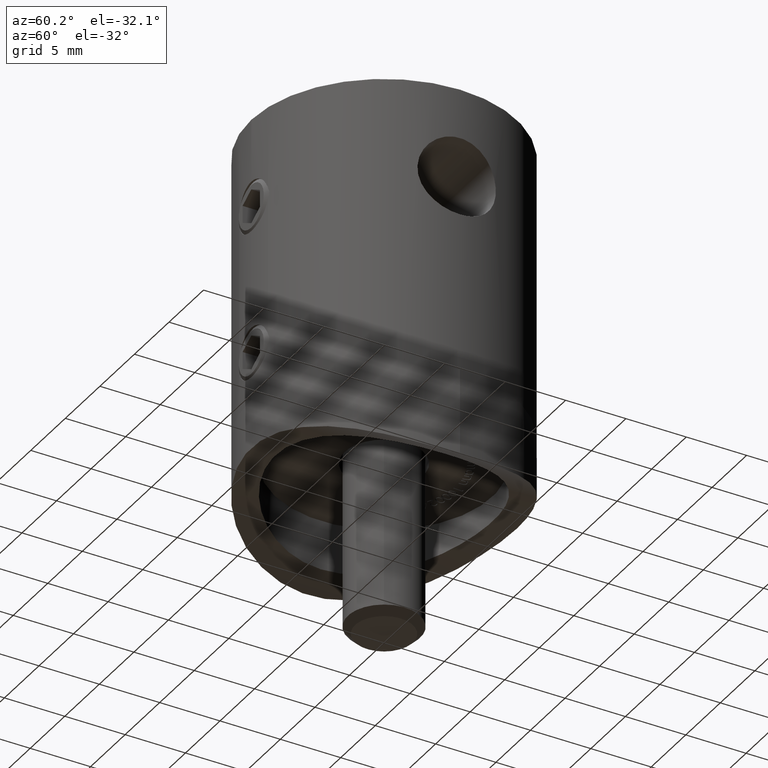
[diagram: clean part render]
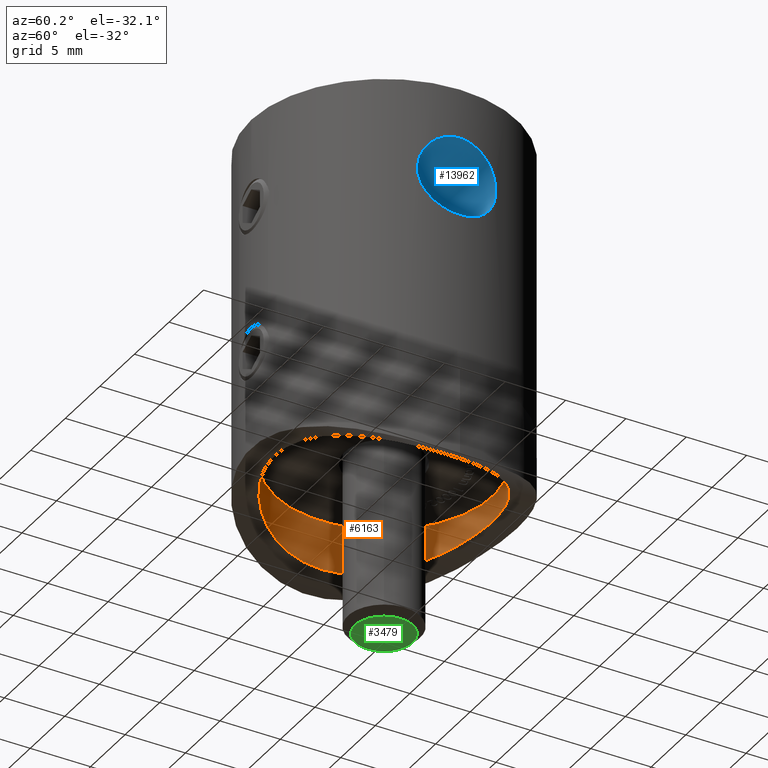
[diagram: same view with three faces highlighted in distinct colors, each labeled with its STEP entity id]
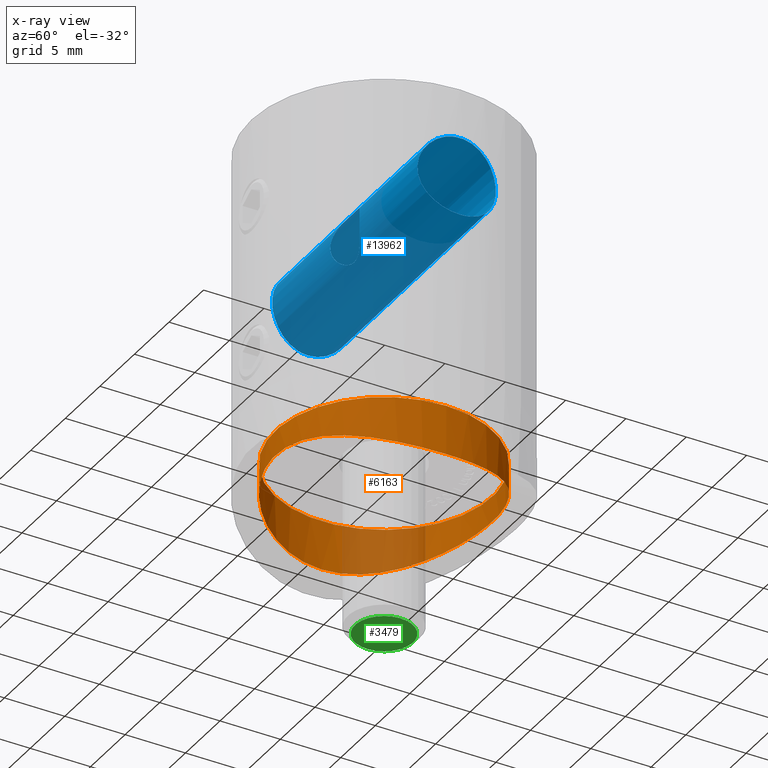
[diagram: x-ray of the same camera — body ghosted, the three highlighted faces saturated]
A machine part, auxiliary view with three faces highlighted in distinct colors.
The next image is the same camera in x-ray (body ghosted, the three faces saturated) — at least one of them is partly hidden behind the body in this view.
Their STEP definitions:

[orange] entity #6163 — the highlighted cylindrical surface (bore or boss wall) has radius 9 mm, axis along (0, 0, 1).
#370 = CARTESIAN_POINT ( 'NONE',  ( 7.801320390038442909, -4.525699097909322788, -13.08450583098699127 ) ) ;
#417 = CARTESIAN_POINT ( 'NONE',  ( 5.497450429022887164, -7.131813691955859902, -12.32385574944524365 ) ) ;
#478 = CARTESIAN_POINT ( 'NONE',  ( 4.015580886328728560, -8.075779872960263006, -11.97657272424988406 ) ) ;
#535 = EDGE_CURVE ( 'NONE', #3088, #3088, #7332, .T. ) ;
#542 = CARTESIAN_POINT ( 'NONE',  ( -2.369100941744517019, 8.702862009132205756, -11.72469854016720525 ) ) ;
#591 = CARTESIAN_POINT ( 'NONE',  ( -8.986205239822114166, 0.5808486025061203595, -13.59872009298760887 ) ) ;
#643 = CARTESIAN_POINT ( 'NONE',  ( -4.783214464045448366, 7.629261748838104928, -12.14515352927832836 ) ) ;
#710 = CARTESIAN_POINT ( 'NONE',  ( 5.950024793402116430, 6.777821217551544208, -12.44748217056694628 ) ) ;
#771 = CARTESIAN_POINT ( 'NONE',  ( 9.000000000000001776, 8.131516293641283255E-17, -13.60520903995044506 ) ) ;
#1745 = CARTESIAN_POINT ( 'NONE',  ( 7.136393349933625174, -5.491527681049624299, -12.83627516481763031 ) ) ;
#1809 = CARTESIAN_POINT ( 'NONE',  ( 2.928297529281813638, -8.515469180634774204, -11.80126484293778155 ) ) ;
#1862 = CARTESIAN_POINT ( 'NONE',  ( -0.5875516269330836039, -8.985797788739249725, -11.60604218590823677 ) ) ;
#1908 = CARTESIAN_POINT ( 'NONE',  ( -1.496328371181385286, 8.879702304195816964, -11.65085713014948254 ) ) ;
#1970 = CARTESIAN_POINT ( 'NONE',  ( -7.143967367260361634, -5.505046255798359489, -12.83690566015627432 ) ) ;
#2041 = CARTESIAN_POINT ( 'NONE',  ( -7.316073530914037448, 5.249737311130734163, -12.90163296229247791 ) ) ;
#2097 = CARTESIAN_POINT ( 'NONE',  ( 2.919603497746493304, 8.533584350906098237, -11.79478858131836994 ) ) ;
#2146 = CARTESIAN_POINT ( 'NONE',  ( -1.198462509687666877, 8.924876651340719391, -11.63180013284765124 ) ) ;
#3088 = VERTEX_POINT ( 'NONE', #9415 ) ;
#3177 = CARTESIAN_POINT ( 'NONE',  ( -1.183904790595064149, -8.926821845496244023, -11.63097937582801045 ) ) ;
#3288 = CARTESIAN_POINT ( 'NONE',  ( -8.528391803012050687, -2.933994583505461939, -13.38952185562483521 ) ) ;
#3349 = CARTESIAN_POINT ( 'NONE',  ( -8.883445497185364914, 1.474070503388011266, -13.55088271687597334 ) ) ;
#3397 = CARTESIAN_POINT ( 'NONE',  ( -4.532780756239585429, 7.780812614444894137, -12.08854762177229780 ) ) ;
#3455 = CARTESIAN_POINT ( 'NONE',  ( 8.533054436092356809, 2.922138815264550882, -13.39152866945267739 ) ) ;
#3529 = CARTESIAN_POINT ( 'NONE',  ( -0.6023502318451330328, 8.984815514353620358, -11.60645918679391997 ) ) ;
#4429 = CARTESIAN_POINT ( 'NONE',  ( 9.000000000000001776, 8.131516293641283255E-17, -13.60520903995044506 ) ) ;
#4475 = CARTESIAN_POINT ( 'NONE',  ( 6.161404844027699390, -6.566661741195221502, -12.51396548706217438 ) ) ;
#4493 = ORIENTED_EDGE ( 'NONE', *, *, #535, .T. ) ;
#4533 = CARTESIAN_POINT ( 'NONE',  ( -2.349030549496113895, -8.708199343826661831, -11.72248688331314348 ) ) ;
#4597 = CARTESIAN_POINT ( 'NONE',  ( 8.519085452557790816, -2.917802884023283472, -13.38675080033652875 ) ) ;
#4647 = CARTESIAN_POINT ( 'NONE',  ( -8.068293523425877467, 3.998611255628524486, -13.19476908392905656 ) ) ;
#4702 = CARTESIAN_POINT ( 'NONE',  ( -5.955765860730123151, 6.772806331197206653, -12.44916342606509652 ) ) ;
#4765 = CARTESIAN_POINT ( 'NONE',  ( 1.177433114945624082, 8.942818534641482131, -11.62448232037809781 ) ) ;
#4831 = CARTESIAN_POINT ( 'NONE',  ( 6.767985068317844188, 5.939641931502991135, -12.70839076729066441 ) ) ;
#4880 = CARTESIAN_POINT ( 'NONE',  ( -6.775583308319266251, -5.952246384174824989, -12.70728883485732652 ) ) ;
#5236 = EDGE_LOOP ( 'NONE', ( #11054 ) ) ;
#5722 = EDGE_CURVE ( 'NONE', #8612, #8612, #10500, .T. ) ;
#5744 = CARTESIAN_POINT ( 'NONE',  ( 8.765548746403906577, -2.062165950460748132, -13.49691077563805308 ) ) ;
#5921 = CARTESIAN_POINT ( 'NONE',  ( 6.766048313375112144, -5.941849588956706896, -12.70773756987710001 ) ) ;
#5969 = CARTESIAN_POINT ( 'NONE',  ( 8.984718648477103997, 0.6034601397220202834, -13.59802301358753418 ) ) ;
#6029 = CARTESIAN_POINT ( 'NONE',  ( 7.796916004019782243, 4.532705707074544677, -13.08280703318132687 ) ) ;
#6099 = CARTESIAN_POINT ( 'NONE',  ( -5.953767838570619197, -6.774246431175879657, -12.44863101267569050 ) ) ;
#6145 = CARTESIAN_POINT ( 'NONE',  ( 4.531143009220560458, 7.798082359429838739, -12.08387089023602812 ) ) ;
#6163 = ADVANCED_FACE ( 'NONE', ( #8844, #6304 ), #8433, .F. ) ;
#6204 = CARTESIAN_POINT ( 'NONE',  ( 8.705287611884937604, 2.359308650723928924, -13.46933880407694950 ) ) ;
#6304 = FACE_OUTER_BOUND ( 'NONE', #12524, .T. ) ;
#6312 = DIRECTION ( 'NONE',  ( -0.000000000000000000, -0.000000000000000000, 1.000000000000000000 ) ) ;
#7191 = CARTESIAN_POINT ( 'NONE',  ( 9.000000000000000000, -0.6022301676324369746, -13.60520903995044506 ) ) ;
#7233 = CARTESIAN_POINT ( 'NONE',  ( 2.360735361079838501, -8.689940755913463377, -11.72990903742021374 ) ) ;
#7286 = CARTESIAN_POINT ( 'NONE',  ( 2.069273427123898834, -8.763926665609217181, -11.69920462453177024 ) ) ;
#7332 = CIRCLE ( 'NONE', #12609, 9.000000000000001776 ) ;
#7344 = CARTESIAN_POINT ( 'NONE',  ( 7.138145225870883515, 5.489248663871817868, -12.83690239017899337 ) ) ;
#7400 = CARTESIAN_POINT ( 'NONE',  ( -8.999172276844690899, -0.6052519994996030661, -13.60482093987771002 ) ) ;
#7449 = CARTESIAN_POINT ( 'NONE',  ( -7.639907694094674184, 4.766181298621789963, -13.02370729629087442 ) ) ;
#7507 = CARTESIAN_POINT ( 'NONE',  ( 6.570051494431059069, 6.157908511444629696, -12.64258529422989774 ) ) ;
#7579 = CARTESIAN_POINT ( 'NONE',  ( 8.924885096745494906, 1.198231756554556604, -13.57014000599857262 ) ) ;
#8117 = CARTESIAN_POINT ( 'NONE',  ( 9.000000000000001776, 0.000000000000000000, -13.60520903995044506 ) ) ;
#8433 = CYLINDRICAL_SURFACE ( 'NONE', #11272, 9.000000000000001776 ) ;
#8479 = CARTESIAN_POINT ( 'NONE',  ( 8.940179620051695863, -1.192762043537304306, -13.57684775906259134 ) ) ;
#8530 = CARTESIAN_POINT ( 'NONE',  ( 8.417805771125104641, -3.197972917069189513, -13.34246350072027631 ) ) ;
#8588 = CARTESIAN_POINT ( 'NONE',  ( 0.6064474908965818978, -8.999256637721655849, -11.60031557812865266 ) ) ;
#8612 = VERTEX_POINT ( 'NONE', #8117 ) ;
#8696 = CARTESIAN_POINT ( 'NONE',  ( 8.880462410946032392, 1.491469006224793947, -13.54950621316234205 ) ) ;
#8752 = CARTESIAN_POINT ( 'NONE',  ( -7.786055058421188058, -4.523650702319247152, -13.08097825999265851 ) ) ;
#8815 = CARTESIAN_POINT ( 'NONE',  ( -7.633095921920673099, -4.777164185214711978, -13.02106681369661523 ) ) ;
#8844 = FACE_OUTER_BOUND ( 'NONE', #5236, .T. ) ;
#8878 = CARTESIAN_POINT ( 'NONE',  ( 7.311472419907168785, 5.256110834363021844, -12.89994295312038730 ) ) ;
#8928 = CARTESIAN_POINT ( 'NONE',  ( -9.000400974029085788, 0.2839722160764812653, -13.60539704731253607 ) ) ;
#8960 = DIRECTION ( 'NONE',  ( 1.000000000000000000, 0.000000000000000000, 0.000000000000000000 ) ) ;
#9415 = CARTESIAN_POINT ( 'NONE',  ( 9.000000000000001776, 0.000000000000000000, -9.499999999999998224 ) ) ;
#9900 = CARTESIAN_POINT ( 'NONE',  ( 7.312433258681625858, -5.254898464817228998, -12.90028524384253927 ) ) ;
#9958 = CARTESIAN_POINT ( 'NONE',  ( -0.2865226143655689173, -9.000361350476721256, -11.59984659659287587 ) ) ;
#10121 = CARTESIAN_POINT ( 'NONE',  ( -4.527725506764324059, -7.799994965017367221, -12.08313975137705931 ) ) ;
#10168 = CARTESIAN_POINT ( 'NONE',  ( 0.5856921983027999490, 9.000526453280954797, -11.59977650575586949 ) ) ;
#10222 = CARTESIAN_POINT ( 'NONE',  ( -5.507888469158018552, 7.141587104885530835, -12.32195180287281744 ) ) ;
#10287 = CARTESIAN_POINT ( 'NONE',  ( -5.496644906564070787, -7.150322684329971423, -12.31889916052555378 ) ) ;
#10374 = DIRECTION ( 'NONE',  ( 1.000000000000000000, 0.000000000000000000, 0.000000000000000000 ) ) ;
#10500 = B_SPLINE_CURVE_WITH_KNOTS ( 'NONE', 3,
 ( #4429, #7191, #8479, #5744, #13907, #4597, #8530, #15213, #370, #9900, #1745, #5921, #12601, #4475, #15384, #417, #13959, #16731, #478, #15313, #1809, #7233, #7286, #16692, #8588, #9958, #1862, #3177, #12669, #4533, #14173, #12996, #10121, #10287, #6099, #4880, #1970, #8815, #8752, #14289, #16849, #3288, #15479, #15438, #7400, #8928, #591, #16909, #3349, #11640, #15662, #16956, #4647, #11465, #7449, #2041, #11523, #12936, #12823, #4702, #10222, #643, #3397, #15533, #16782, #12889, #542, #1908, #2146, #3529, #11418, #10168, #4765, #14225, #2097, #12762, #6145, #15609, #710, #7507, #4831, #7344, #8878, #6029, #11593, #3455, #6204, #8696, #7579, #5969, #17014, #771 ),
 .UNSPECIFIED., .T., .F.,
 ( 4, 2, 2, 2, 2, 2, 2, 2, 2, 2, 2, 2, 2, 2, 2, 2, 2, 2, 2, 2, 2, 2, 2, 2, 2, 2, 2, 2, 2, 2, 2, 2, 2, 2, 2, 2, 2, 2, 2, 2, 2, 2, 2, 2, 2, 4 ),
 ( 0.000000000000000000, 0.001779121269481608947, 0.002668681904222413963, 0.003558242538963218762, 0.005337363808444828793, 0.006226924443185632291, 0.007116485077926435789, 0.008006045712667239286, 0.008895606347408041917, 0.01067472761688964891, 0.01156428825163045501, 0.01245384888637125938, 0.01423297015585286811, 0.01512253079059367421, 0.01601209142533447857, 0.01779121269481609077, 0.01957033396429769950, 0.02134945523377930823, 0.02312857650326091696, 0.02401813713800172306, 0.02490769777274252569, 0.02668681904222413442, 0.02846594031170574315, 0.02935550094644654925, 0.03024506158118735535, 0.03202418285066896408, 0.03291374348540977018, 0.03380330412015057628, 0.03469286475489137545, 0.03558242538963218154, 0.03736154665911378681, 0.03825110729385459291, 0.03914066792859539901, 0.04091978919807700427, 0.04180934983281781037, 0.04269891046755861647, 0.04447803173704022867, 0.04625715300652183393, 0.04803627427600344613, 0.04981539554548505139, 0.05070495618022585749, 0.05159451681496665665, 0.05337363808444827579, 0.05515275935392989493, 0.05604231998867070103, 0.05693188062341151406 ),
 .UNSPECIFIED. ) ;
#11054 = ORIENTED_EDGE ( 'NONE', *, *, #5722, .T. ) ;
#11272 = AXIS2_PLACEMENT_3D ( 'NONE', #12795, #14152, #8960 ) ;
#11418 = CARTESIAN_POINT ( 'NONE',  ( -0.3048979933382195973, 8.999731393797214096, -11.60011403089814230 ) ) ;
#11465 = CARTESIAN_POINT ( 'NONE',  ( -7.790441516584827752, 4.516112634829497097, -13.08271163092420863 ) ) ;
#11523 = CARTESIAN_POINT ( 'NONE',  ( -7.142772226264598956, 5.483223177737656329, -12.83855970004989189 ) ) ;
#11593 = CARTESIAN_POINT ( 'NONE',  ( 8.075678375321288627, 4.016880884885598135, -13.19680648015837043 ) ) ;
#11640 = CARTESIAN_POINT ( 'NONE',  ( -8.708359458168317246, 2.349133148422245743, -13.47072283112899349 ) ) ;
#11907 = CARTESIAN_POINT ( 'NONE',  ( 0.000000000000000000, 0.000000000000000000, -9.499999999999998224 ) ) ;
#12524 = EDGE_LOOP ( 'NONE', ( #4493 ) ) ;
#12601 = CARTESIAN_POINT ( 'NONE',  ( 6.571030345259970318, -6.156745591378436799, -12.64292515979103548 ) ) ;
#12609 = AXIS2_PLACEMENT_3D ( 'NONE', #11907, #6312, #10374 ) ;
#12669 = CARTESIAN_POINT ( 'NONE',  ( -1.478072324521910064, -8.882734505041492312, -11.64958208143097806 ) ) ;
#12762 = CARTESIAN_POINT ( 'NONE',  ( 4.005712576156169824, 8.080867107885595146, -11.97460065005256347 ) ) ;
#12795 = CARTESIAN_POINT ( 'NONE',  ( 0.000000000000000000, 0.000000000000000000, 0.000000000000000000 ) ) ;
#12823 = CARTESIAN_POINT ( 'NONE',  ( -6.575604964608826819, 6.151986061130796379, -12.64439672420785854 ) ) ;
#12889 = CARTESIAN_POINT ( 'NONE',  ( -2.930983491255343409, 8.529688198176652136, -11.79637823758307391 ) ) ;
#12936 = CARTESIAN_POINT ( 'NONE',  ( -6.773075127230496761, 5.933833905163502287, -12.71010833165940745 ) ) ;
#12996 = CARTESIAN_POINT ( 'NONE',  ( -4.012651566003442305, -8.077845520338660990, -11.97579437176038475 ) ) ;
#13907 = CARTESIAN_POINT ( 'NONE',  ( 8.693075955343488204, -2.349217114833196618, -13.46403630871103374 ) ) ;
#13959 = CARTESIAN_POINT ( 'NONE',  ( 5.261681691625376800, -7.307607166974759316, -12.26179666198278007 ) ) ;
#14152 = DIRECTION ( 'NONE',  ( -0.000000000000000000, -0.000000000000000000, 1.000000000000000000 ) ) ;
#14173 = CARTESIAN_POINT ( 'NONE',  ( -2.915995473697127416, -8.535217117214013882, -11.79414645783861104 ) ) ;
#14225 = CARTESIAN_POINT ( 'NONE',  ( 2.354678229249703936, 8.707229325129514308, -11.72289421725914949 ) ) ;
#14289 = CARTESIAN_POINT ( 'NONE',  ( -8.064130121432256715, -4.006978217306452983, -13.19305538488321616 ) ) ;
#15213 = CARTESIAN_POINT ( 'NONE',  ( 8.077715715060881152, -4.012037878863896623, -13.19767280878578930 ) ) ;
#15313 = CARTESIAN_POINT ( 'NONE',  ( 3.205093018567957586, -8.415055338208809133, -11.84188982558057823 ) ) ;
#15384 = CARTESIAN_POINT ( 'NONE',  ( 5.946797421235015868, -6.761680869955750239, -12.44981461952046864 ) ) ;
#15438 = CARTESIAN_POINT ( 'NONE',  ( -8.939971974155939805, -1.198140283409453222, -13.57673377086508992 ) ) ;
#15479 = CARTESIAN_POINT ( 'NONE',  ( -8.702408039283346497, -2.372073640349044332, -13.46802757779980197 ) ) ;
#15533 = CARTESIAN_POINT ( 'NONE',  ( -4.013155420945845542, 8.061124604704584584, -11.98162003019776911 ) ) ;
#15609 = CARTESIAN_POINT ( 'NONE',  ( 5.501311983712241727, 7.146811310810107010, -12.32013601802289848 ) ) ;
#15662 = CARTESIAN_POINT ( 'NONE',  ( -8.536066545482778878, 2.912700169554779617, -13.39288029292577242 ) ) ;
#16692 = CARTESIAN_POINT ( 'NONE',  ( 1.195367113660797065, -8.940039705118067559, -11.62565397850719684 ) ) ;
#16731 = CARTESIAN_POINT ( 'NONE',  ( 4.529556461873101014, -7.799281068273507422, -12.08344911502852881 ) ) ;
#16782 = CARTESIAN_POINT ( 'NONE',  ( -3.745224452304393825, 8.189008184627281750, -11.93162700057733616 ) ) ;
#16849 = CARTESIAN_POINT ( 'NONE',  ( -8.189956734736416166, -3.743000991661145971, -13.24547006911485880 ) ) ;
#16909 = CARTESIAN_POINT ( 'NONE',  ( -8.927896380613054461, 1.175557709462172529, -13.57153929986383822 ) ) ;
#16956 = CARTESIAN_POINT ( 'NONE',  ( -8.195999223167369507, 3.729967871242132027, -13.24799809272091800 ) ) ;
#17014 = CARTESIAN_POINT ( 'NONE',  ( 9.000000000000001776, 0.3011150838162207632, -13.60520903995044684 ) ) ;

[blue] entity #13962 — the highlighted cylindrical surface (bore or boss wall) has radius 3.25 mm, axis along (1, 0, 0).
#17 = CARTESIAN_POINT ( 'NONE',  ( 10.55956165024552540, 3.082662193727776057, 2.348977628326424760 ) ) ;
#44 = EDGE_CURVE ( 'NONE', #9894, #9894, #1847, .T. ) ;
#243 = CARTESIAN_POINT ( 'NONE',  ( -10.82082302089214032, 1.985311474497417183, 5.981802369643311579 ) ) ;
#312 = CARTESIAN_POINT ( 'NONE',  ( -10.87968053426905257, -1.632286244592557667, 6.218326391172696255 ) ) ;
#384 = CARTESIAN_POINT ( 'NONE',  ( 1.290282571788494037, -2.791249430873542714, 1.721970789379007716 ) ) ;
#661 = CARTESIAN_POINT ( 'NONE',  ( -1.064844960109141203, -2.697475911997786469, 1.585069092286924386 ) ) ;
#733 = CARTESIAN_POINT ( 'NONE',  ( -0.6820475022401956133, -2.569693777429525650, 5.390843964799948651 ) ) ;
#789 = CARTESIAN_POINT ( 'NONE',  ( 0.9517216554128369310, -2.654105121542531531, 5.276869112115569749 ) ) ;
#848 = CARTESIAN_POINT ( 'NONE',  ( -0.5684644304244939050, -2.533562603377285782, 1.360137493390085384 ) ) ;
#1035 = CARTESIAN_POINT ( 'NONE',  ( 10.95133815871162497, -1.052168424144557690, 6.482278922429544288 ) ) ;
#1097 = CARTESIAN_POINT ( 'NONE',  ( 10.69344161713029528, -2.581728074328438094, 1.414362566320142012 ) ) ;
#1165 = CARTESIAN_POINT ( 'NONE',  ( 10.90685326097161401, 1.442026654976225730, 6.320285115387410890 ) ) ;
#1188 = EDGE_LOOP ( 'NONE', ( #12348 ) ) ;
#1271 = CARTESIAN_POINT ( 'NONE',  ( -10.87979518323163752, 1.631551703679881671, 0.5812257195784085173 ) ) ;
#1334 = CARTESIAN_POINT ( 'NONE',  ( -10.63348764701147786, 2.818438293724330634, 5.032002379398877956 ) ) ;
#1341 = CARTESIAN_POINT ( 'NONE',  ( 10.96936271619093439, 0.8467281624249234362, 0.2550005949569723041 ) ) ;
#1413 = CARTESIAN_POINT ( 'NONE',  ( 10.54066686130504849, 3.145828498892194958, 2.556303914701417490 ) ) ;
#1457 = CARTESIAN_POINT ( 'NONE',  ( -10.51551207130800414, 3.228920975059768939, 2.972865257951308404 ) ) ;
#1461 = CARTESIAN_POINT ( 'NONE',  ( 10.87970059509409815, 1.632192217108486831, 0.5815857855673306487 ) ) ;
#1574 = CARTESIAN_POINT ( 'NONE',  ( 11.00000000000000000, 1.355252715606880543E-17, 0.1499999999999964972 ) ) ;
#1645 = CARTESIAN_POINT ( 'NONE',  ( -10.50894564109087526, -3.249932540462847630, 3.615274853030530977 ) ) ;
#1847 = B_SPLINE_CURVE_WITH_KNOTS ( 'NONE', 3,
 ( #3250, #11486, #12726, #4616, #14078, #11262, #384, #9926, #5991, #7368, #16803, #8714, #5821, #11434, #3317, #12779, #15277, #4662, #6053, #14139, #8775, #14243, #17164, #10184, #789, #11714, #6302, #2293, #8841, #14316, #15737, #8947, #733, #7646, #2111, #4904, #3600, #4967, #3418, #12906, #4793, #16927, #2236, #17109, #10314, #6162, #15628, #6223, #9010, #13089, #14188, #661, #11655, #848, #2062, #9079 ),
 .UNSPECIFIED., .T., .F.,
 ( 4, 2, 2, 2, 2, 2, 2, 2, 2, 2, 2, 2, 2, 2, 2, 2, 2, 2, 2, 2, 2, 2, 2, 2, 2, 2, 2, 4 ),
 ( 0.000000000000000000, 0.0004222826694914322428, 0.0008445653389828644856, 0.001689130677965729188, 0.002111413347457161485, 0.002533696016948594650, 0.002955978686440026947, 0.003378261355931459244, 0.003800544025422891541, 0.004222826694914322970, 0.005067392033897191034, 0.005489674703388624198, 0.005911957372880056495, 0.006334240042371489660, 0.006756522711862922824, 0.007178805381354355988, 0.007601088050845790887, 0.008023370720337224052, 0.008445653389828658084, 0.009290218728811524412, 0.009712501398302960179, 0.01013478406779439248, 0.01055706673728582651, 0.01097934940677726054, 0.01182391474576012687, 0.01224619741525156263, 0.01266848008474299493, 0.01351304542372586126 ),
 .UNSPECIFIED. ) ;
#1856 = CARTESIAN_POINT ( 'NONE',  ( -11.00000000000000000, 0.000000000000000000, 3.399999999999996803 ) ) ;
#2062 = CARTESIAN_POINT ( 'NONE',  ( -0.2865957671741650725, -2.480423350962498219, 1.300000000000003597 ) ) ;
#2111 = CARTESIAN_POINT ( 'NONE',  ( -1.054547270854179208, -2.693405870667243462, 5.220938030382874295 ) ) ;
#2236 = CARTESIAN_POINT ( 'NONE',  ( -2.099479390641308729, -3.249663607505832275, 3.548841673163475541 ) ) ;
#2257 = FACE_BOUND ( 'NONE', #6742, .T. ) ;
#2293 = CARTESIAN_POINT ( 'NONE',  ( 0.2949725550500122973, -2.494270031036307511, 5.483864102222785419 ) ) ;
#2419 = CARTESIAN_POINT ( 'NONE',  ( 10.99360481843331527, -0.4298980611793273843, 6.628540109563794580 ) ) ;
#2439 = ORIENTED_EDGE ( 'NONE', *, *, #11711, .F. ) ;
#2493 = CARTESIAN_POINT ( 'NONE',  ( 10.54093356007838622, -3.144939501328844145, 2.552810361236976355 ) ) ;
#2600 = CARTESIAN_POINT ( 'NONE',  ( 10.55931663660790321, -3.083520468008074555, 4.448870909955585873 ) ) ;
#2669 = CARTESIAN_POINT ( 'NONE',  ( 10.78931499372130887, -2.148072420595371845, 5.848121061543709587 ) ) ;
#2730 = CARTESIAN_POINT ( 'NONE',  ( 10.63372746600594709, 2.817531859397631955, 5.033539881290628237 ) ) ;
#2790 = B_SPLINE_CURVE_WITH_KNOTS ( 'NONE', 3,
 ( #17297, #16097, #6549, #13367, #3836, #10727, #9254, #9183, #5275, #13319, #1097, #16150, #14744, #17460, #2493, #8018, #17535, #6596, #10556, #14856, #2600, #14674, #12087, #9427, #10790, #2669, #3970, #16052, #5389, #1035, #12147, #2419, #11902, #7948, #13261, #15977, #7891, #1165, #17349, #10602, #17400, #9314, #15039, #2730, #16390, #13676, #5629, #9735, #14986, #8194, #5511, #1413, #17, #6965, #2838, #9668, #9606, #1461, #12376, #13559, #1341, #6897, #16285, #1574 ),
 .UNSPECIFIED., .T., .F.,
 ( 4, 2, 2, 2, 2, 2, 2, 2, 2, 2, 2, 2, 2, 2, 2, 2, 2, 2, 2, 2, 2, 2, 2, 2, 2, 2, 2, 2, 2, 2, 2, 4 ),
 ( 0.000000000000000000, 0.0006385589136293435197, 0.001277117827258687039, 0.001915676740888030668, 0.002554235654517374079, 0.003192794568146717273, 0.003831353481776060468, 0.004469912395405403228, 0.005108471309034746423, 0.005747030222664089617, 0.006385589136293434546, 0.007024148049922779476, 0.007662706963552123537, 0.008301265877181468467, 0.008939824790810811661, 0.009578383704440156590, 0.01021694261806949978, 0.01085550153169884298, 0.01149406044532818617, 0.01213261935895752937, 0.01277117827258687430, 0.01340973718621621576, 0.01404829609984556069, 0.01468685501347490562, 0.01532541392710424881, 0.01596397284073359721, 0.01660253175436294387, 0.01787964958162163373, 0.01851820849525098039, 0.01915676740888032706, 0.01979532632250967025, 0.02043388523613901692 ),
 .UNSPECIFIED. ) ;
#2838 = CARTESIAN_POINT ( 'NONE',  ( 10.69334767689096211, 2.597127137804707608, 1.401245620534072867 ) ) ;
#2906 = CARTESIAN_POINT ( 'NONE',  ( -10.95133815871162675, 1.052168424144557246, 6.482278922429543400 ) ) ;
#3006 = CARTESIAN_POINT ( 'NONE',  ( -10.54066686130505026, -3.145828498892194958, 2.556303914701415714 ) ) ;
#3250 = CARTESIAN_POINT ( 'NONE',  ( -3.252606517456513302E-16, -2.480423350962499107, 1.300000000000003819 ) ) ;
#3317 = CARTESIAN_POINT ( 'NONE',  ( 2.099287182249385264, -3.249539413149019840, 3.247454687688843489 ) ) ;
#3418 = CARTESIAN_POINT ( 'NONE',  ( -1.820389798470868792, -3.075525355249607351, 4.483157700853181993 ) ) ;
#3600 = CARTESIAN_POINT ( 'NONE',  ( -1.380185647789146541, -2.837367704852858719, 4.988447348076188170 ) ) ;
#3836 = CARTESIAN_POINT ( 'NONE',  ( 10.95133973977292108, -1.052276231709177834, 0.3177073230599884446 ) ) ;
#3970 = CARTESIAN_POINT ( 'NONE',  ( 10.82082302089213144, -1.985311474497415851, 5.981802369643309802 ) ) ;
#4014 = CARTESIAN_POINT ( 'NONE',  ( -10.55979327443990634, 3.081865600628499013, 2.346756242581110374 ) ) ;
#4073 = CARTESIAN_POINT ( 'NONE',  ( -10.72521692924357417, 2.448112533877693231, 5.548082139390231760 ) ) ;
#4203 = CARTESIAN_POINT ( 'NONE',  ( -11.00002661612281329, -0.2114747014784292556, 6.650090085346186619 ) ) ;
#4306 = CARTESIAN_POINT ( 'NONE',  ( -10.99382538071746573, -0.4248343345359129608, 6.629290888909211255 ) ) ;
#4374 = CARTESIAN_POINT ( 'NONE',  ( -10.90685326097161045, -1.442026654976226174, 6.320285115387410002 ) ) ;
#4428 = CARTESIAN_POINT ( 'NONE',  ( -10.95153199571420721, -1.050159929190337849, 6.482964507083750050 ) ) ;
#4616 = CARTESIAN_POINT ( 'NONE',  ( 0.5558432300005353710, -2.538377770263591682, 1.370115971821333822 ) ) ;
#4662 = CARTESIAN_POINT ( 'NONE',  ( 2.031698508970341877, -3.206220668847886035, 3.949420526141358412 ) ) ;
#4793 = CARTESIAN_POINT ( 'NONE',  ( -2.026613090397107797, -3.202993487686108587, 3.968036772933511092 ) ) ;
#4904 = CARTESIAN_POINT ( 'NONE',  ( -1.277019484062096311, -2.788035867838324133, 5.072455229381771069 ) ) ;
#4967 = CARTESIAN_POINT ( 'NONE',  ( -1.667136871932414888, -2.984094105498653171, 4.704976723982925435 ) ) ;
#5275 = CARTESIAN_POINT ( 'NONE',  ( 10.78896276715286362, -2.149762789597315038, 0.9534896782864721310 ) ) ;
#5320 = CARTESIAN_POINT ( 'NONE',  ( -10.78896276715286717, 2.149762789597315926, 0.9534896782864713538 ) ) ;
#5381 = CARTESIAN_POINT ( 'NONE',  ( -10.54083420043813213, 3.145268873415251409, 4.245677190015647362 ) ) ;
#5389 = CARTESIAN_POINT ( 'NONE',  ( 10.90660291162980933, -1.443910934666143397, 6.319353175135170808 ) ) ;
#5456 = CARTESIAN_POINT ( 'NONE',  ( -10.95133973977291575, 1.052276231709178722, 0.3177073230599885001 ) ) ;
#5462 = FACE_OUTER_BOUND ( 'NONE', #15566, .T. ) ;
#5511 = CARTESIAN_POINT ( 'NONE',  ( 10.51543955889966853, 3.229152475276543921, 2.974989035193387643 ) ) ;
#5563 = CARTESIAN_POINT ( 'NONE',  ( -10.62876815859237212, -2.838640733659557380, 1.761575241032941497 ) ) ;
#5621 = CARTESIAN_POINT ( 'NONE',  ( -10.51543955889967386, -3.229152475276543921, 2.974989035193390752 ) ) ;
#5629 = CARTESIAN_POINT ( 'NONE',  ( 10.54100170543571835, 3.144708051160631346, 4.247596828305608696 ) ) ;
#5695 = CARTESIAN_POINT ( 'NONE',  ( -10.82104704333672096, -1.984123937140142901, 5.982745483692514021 ) ) ;
#5743 = CARTESIAN_POINT ( 'NONE',  ( -10.69334767689096033, -2.597127137804708052, 1.401245620534072867 ) ) ;
#5797 = CARTESIAN_POINT ( 'NONE',  ( -10.96936271619093084, -0.8467281624249207717, 0.2550005949569715269 ) ) ;
#5821 = CARTESIAN_POINT ( 'NONE',  ( 2.027273311716314641, -3.203413086239513596, 2.834613811083154022 ) ) ;
#5888 = FACE_OUTER_BOUND ( 'NONE', #1188, .T. ) ;
#5991 = CARTESIAN_POINT ( 'NONE',  ( 1.660121856412178909, -2.984068746725051291, 2.106925147120492170 ) ) ;
#6053 = CARTESIAN_POINT ( 'NONE',  ( 1.989914352401353170, -3.179699764456434430, 4.085031965488539640 ) ) ;
#6162 = CARTESIAN_POINT ( 'NONE',  ( -2.030598624016132892, -3.205521299116866007, 2.846163092444273346 ) ) ;
#6223 = CARTESIAN_POINT ( 'NONE',  ( -1.828092984827227596, -3.080136791537362750, 2.330013773701279156 ) ) ;
#6302 = CARTESIAN_POINT ( 'NONE',  ( 0.5682832568723172884, -2.541125742566577639, 5.426463062758386080 ) ) ;
#6549 = CARTESIAN_POINT ( 'NONE',  ( 10.99364795580406984, -0.4281686238539245681, 0.1713184752164194913 ) ) ;
#6596 = CARTESIAN_POINT ( 'NONE',  ( 10.50888097400719445, -3.250141642506715556, 3.611128132238753174 ) ) ;
#6710 = CARTESIAN_POINT ( 'NONE',  ( -10.50888097400719445, 3.250141642506714668, 3.611128132238751842 ) ) ;
#6742 = EDGE_LOOP ( 'NONE', ( #15682 ) ) ;
#6897 = CARTESIAN_POINT ( 'NONE',  ( 10.99364440738194304, 0.4285436085661384897, 0.1713284133684951360 ) ) ;
#6965 = CARTESIAN_POINT ( 'NONE',  ( 10.62876815859236856, 2.838640733659554272, 1.761575241032938388 ) ) ;
#7060 = CARTESIAN_POINT ( 'NONE',  ( -10.55949912972683968, -3.082908798032038877, 4.450823723019629696 ) ) ;
#7109 = EDGE_CURVE ( 'NONE', #15175, #15175, #16063, .T. ) ;
#7120 = CARTESIAN_POINT ( 'NONE',  ( -10.95113902086531965, -1.054255281315769288, 0.3184237455568702524 ) ) ;
#7148 = VERTEX_POINT ( 'NONE', #16143 ) ;
#7190 = CARTESIAN_POINT ( 'NONE',  ( -10.96938780099209687, -0.8468836903340380973, 6.545090121449427478 ) ) ;
#7368 = CARTESIAN_POINT ( 'NONE',  ( 1.811354759732492825, -3.070776412025037150, 2.328999959065723324 ) ) ;
#7646 = CARTESIAN_POINT ( 'NONE',  ( -0.9341356413520737201, -2.647781469625501316, 5.285746295514914372 ) ) ;
#7891 = CARTESIAN_POINT ( 'NONE',  ( 10.95153199571420366, 1.050159929190336294, 6.482964507083748273 ) ) ;
#7948 = CARTESIAN_POINT ( 'NONE',  ( 11.00002661612280974, 0.2114747014784297274, 6.650090085346187507 ) ) ;
#8018 = CARTESIAN_POINT ( 'NONE',  ( 10.51551207130800591, -3.228920975059770271, 2.972865257951310181 ) ) ;
#8121 = CARTESIAN_POINT ( 'NONE',  ( -10.69344161713029884, 2.581728074328438538, 1.414362566320143122 ) ) ;
#8194 = CARTESIAN_POINT ( 'NONE',  ( 10.50890401506055305, 3.250067138876735484, 3.186766858344670883 ) ) ;
#8425 = CARTESIAN_POINT ( 'NONE',  ( -10.69314154176931453, -2.582899449784521462, 5.383826795562177026 ) ) ;
#8478 = CARTESIAN_POINT ( 'NONE',  ( -10.99999999999999467, -0.2160055992346799625, 0.1499999999999964695 ) ) ;
#8581 = DIRECTION ( 'NONE',  ( 1.000000000000000000, -0.000000000000000000, -0.000000000000000000 ) ) ;
#8714 = CARTESIAN_POINT ( 'NONE',  ( 1.984352159596816989, -3.176214508073363252, 2.699183487497000211 ) ) ;
#8775 = CARTESIAN_POINT ( 'NONE',  ( 1.675173912630206985, -2.988772239452851753, 4.694055632511551224 ) ) ;
#8841 = CARTESIAN_POINT ( 'NONE',  ( 0.1527374813067118586, -2.481031903536440986, 5.499281191332322294 ) ) ;
#8947 = CARTESIAN_POINT ( 'NONE',  ( -0.5485397889028756913, -2.536700748728026422, 5.431972994312512348 ) ) ;
#9010 = CARTESIAN_POINT ( 'NONE',  ( -1.672906441406222244, -2.987422155654996025, 2.102695030687830258 ) ) ;
#9079 = CARTESIAN_POINT ( 'NONE',  ( -3.252606517456513302E-16, -2.480423350962499107, 1.300000000000003819 ) ) ;
#9183 = CARTESIAN_POINT ( 'NONE',  ( 10.82108718208419873, -1.983929532161890164, 0.8170805244524391719 ) ) ;
#9254 = CARTESIAN_POINT ( 'NONE',  ( 10.87979518323163397, -1.631551703679882781, 0.5812257195784081842 ) ) ;
#9314 = CARTESIAN_POINT ( 'NONE',  ( 10.72546277658124936, 2.447034136019467621, 5.549298924399434618 ) ) ;
#9427 = CARTESIAN_POINT ( 'NONE',  ( 10.69293793460732012, -2.583743849787214941, 5.382749076555591650 ) ) ;
#9494 = CARTESIAN_POINT ( 'NONE',  ( -10.63327948049522931, 2.819287313919774718, 1.769142891183481447 ) ) ;
#9599 = CARTESIAN_POINT ( 'NONE',  ( -10.99364795580407339, 0.4281686238539237910, 0.1713184752164194913 ) ) ;
#9606 = CARTESIAN_POINT ( 'NONE',  ( 10.82093925690012703, 1.984744333902531244, 0.8176948192075681465 ) ) ;
#9662 = CARTESIAN_POINT ( 'NONE',  ( -10.99999999999999467, -1.084202172485504434E-16, 0.1499999999999964695 ) ) ;
#9668 = CARTESIAN_POINT ( 'NONE',  ( 10.78883819270991928, 2.150385762769400966, 0.9540363491830772258 ) ) ;
#9730 = CARTESIAN_POINT ( 'NONE',  ( -10.63372746600593821, -2.817531859397631955, 5.033539881290627349 ) ) ;
#9735 = CARTESIAN_POINT ( 'NONE',  ( 10.51571017952344711, 3.228272773682561603, 3.831119483540374127 ) ) ;
#9777 = CARTESIAN_POINT ( 'NONE',  ( -10.54100170543571835, -3.144708051160629569, 4.247596828305606032 ) ) ;
#9833 = CARTESIAN_POINT ( 'NONE',  ( -10.90630633480980016, -1.446161188729948588, 0.4817498005926354465 ) ) ;
#9894 = VERTEX_POINT ( 'NONE', #12031 ) ;
#9926 = CARTESIAN_POINT ( 'NONE',  ( 1.573261429000957667, -2.936168862915558897, 2.002680686919607655 ) ) ;
#10184 = CARTESIAN_POINT ( 'NONE',  ( 1.068727259780430261, -2.699024323622439159, 5.212630621479972248 ) ) ;
#10314 = CARTESIAN_POINT ( 'NONE',  ( -2.086582682321243443, -3.241274952452906088, 3.123886251946442982 ) ) ;
#10556 = CARTESIAN_POINT ( 'NONE',  ( 10.51556348105383876, -3.228750006291583929, 3.827854639637940704 ) ) ;
#10602 = CARTESIAN_POINT ( 'NONE',  ( 10.82104704333672451, 1.984123937140142901, 5.982745483692513133 ) ) ;
#10717 = CARTESIAN_POINT ( 'NONE',  ( -10.72530623168116826, 2.447652728474610573, 1.251538009044874888 ) ) ;
#10727 = CARTESIAN_POINT ( 'NONE',  ( 10.90642676691805590, -1.445331291297211829, 0.4812963712402680838 ) ) ;
#10782 = CARTESIAN_POINT ( 'NONE',  ( -10.99999999999999645, 0.000000000000000000, 0.1499999999999964972 ) ) ;
#10790 = CARTESIAN_POINT ( 'NONE',  ( 10.72521692924356884, -2.448112533877691011, 5.548082139390230871 ) ) ;
#10898 = CARTESIAN_POINT ( 'NONE',  ( -10.82108718208419695, 1.983929532161889275, 0.8170805244524388389 ) ) ;
#10965 = CARTESIAN_POINT ( 'NONE',  ( -10.78931499372130887, 2.148072420595372733, 5.848121061543707810 ) ) ;
#11127 = CARTESIAN_POINT ( 'NONE',  ( -10.99997321076161860, 0.2142346080874176495, 6.649909328724201707 ) ) ;
#11194 = DIRECTION ( 'NONE',  ( 0.000000000000000000, 0.000000000000000000, -1.000000000000000000 ) ) ;
#11262 = CARTESIAN_POINT ( 'NONE',  ( 1.065812963269877844, -2.689196604151514514, 1.570249478883360084 ) ) ;
#11434 = CARTESIAN_POINT ( 'NONE',  ( 2.084283856847270133, -3.239792820012951324, 3.108007830411477990 ) ) ;
#11486 = CARTESIAN_POINT ( 'NONE',  ( 0.1432978835870820644, -2.480423350962499551, 1.300000000000004041 ) ) ;
#11655 = CARTESIAN_POINT ( 'NONE',  ( -0.9446601715522318088, -2.651547614858278834, 1.519530677220291670 ) ) ;
#11711 = EDGE_CURVE ( 'NONE', #7148, #7148, #2790, .T. ) ;
#11714 = CARTESIAN_POINT ( 'NONE',  ( 0.7022711304553623801, -2.575205744690625131, 5.383740666701216426 ) ) ;
#11902 = CARTESIAN_POINT ( 'NONE',  ( 10.99997321076162926, -0.2142346080874187320, 6.649909328724204371 ) ) ;
#12031 = CARTESIAN_POINT ( 'NONE',  ( 0.000000000000000000, -2.480423350962499107, 1.300000000000003819 ) ) ;
#12087 = CARTESIAN_POINT ( 'NONE',  ( 10.63348764701148497, -2.818438293724330634, 5.032002379398879732 ) ) ;
#12141 = CARTESIAN_POINT ( 'NONE',  ( -10.60585941788002273, 2.919396442316302576, 1.956274816500715996 ) ) ;
#12147 = CARTESIAN_POINT ( 'NONE',  ( 10.96916414007961826, -0.8494688427937755471, 6.544310141698896466 ) ) ;
#12265 = CARTESIAN_POINT ( 'NONE',  ( -10.96946992123951858, 0.8451942934197916868, 0.2546288986349467542 ) ) ;
#12312 = CARTESIAN_POINT ( 'NONE',  ( -10.87938309479803856, 1.634226415421991430, 6.217173965129577873 ) ) ;
#12348 = ORIENTED_EDGE ( 'NONE', *, *, #7109, .F. ) ;
#12370 = CARTESIAN_POINT ( 'NONE',  ( -10.50890401506055838, -3.250067138876735040, 3.186766858344670439 ) ) ;
#12376 = CARTESIAN_POINT ( 'NONE',  ( 10.90630633480979661, 1.446161188729945035, 0.4817498005926340032 ) ) ;
#12490 = CARTESIAN_POINT ( 'NONE',  ( -10.55956165024552362, -3.082662193727775612, 2.348977628326421652 ) ) ;
#12538 = CARTESIAN_POINT ( 'NONE',  ( -10.78952390085560076, -2.147021617855825237, 5.849032482783530718 ) ) ;
#12594 = AXIS2_PLACEMENT_3D ( 'NONE', #1856, #8581, #11194 ) ;
#12726 = CARTESIAN_POINT ( 'NONE',  ( 0.2829516501971868214, -2.492882196290118646, 1.314495450054599557 ) ) ;
#12779 = CARTESIAN_POINT ( 'NONE',  ( 2.100663753942665135, -3.250428884190637913, 3.532244238952696236 ) ) ;
#12906 = CARTESIAN_POINT ( 'NONE',  ( -1.984571470427041184, -3.176343529805076393, 4.100527290396754232 ) ) ;
#13089 = CARTESIAN_POINT ( 'NONE',  ( -1.388788027977086559, -2.841588636705266957, 1.819123075751113205 ) ) ;
#13261 = CARTESIAN_POINT ( 'NONE',  ( 10.99382538071747106, 0.4248343345359131829, 6.629290888909210366 ) ) ;
#13319 = CARTESIAN_POINT ( 'NONE',  ( 10.72530623168116293, -2.447652728474609241, 1.251538009044874888 ) ) ;
#13367 = CARTESIAN_POINT ( 'NONE',  ( 10.96946992123952036, -0.8451942934197921309, 0.2546288986349470318 ) ) ;
#13501 = CARTESIAN_POINT ( 'NONE',  ( -10.51556348105383876, 3.228750006291584818, 3.827854639637938039 ) ) ;
#13559 = CARTESIAN_POINT ( 'NONE',  ( 10.95113902086531965, 1.054255281315767068, 0.3184237455568696418 ) ) ;
#13610 = CARTESIAN_POINT ( 'NONE',  ( -10.55931663660789788, 3.083520468008074999, 4.448870909955584985 ) ) ;
#13669 = CARTESIAN_POINT ( 'NONE',  ( -10.51571017952344711, -3.228272773682562491, 3.831119483540372794 ) ) ;
#13676 = CARTESIAN_POINT ( 'NONE',  ( 10.55949912972683791, 3.082908798032037545, 4.450823723019634137 ) ) ;
#13737 = CARTESIAN_POINT ( 'NONE',  ( -10.96916414007962004, 0.8494688427937762132, 6.544310141698897354 ) ) ;
#13780 = CARTESIAN_POINT ( 'NONE',  ( -10.99360481843332060, 0.4298980611793295492, 6.628540109563795468 ) ) ;
#13834 = CARTESIAN_POINT ( 'NONE',  ( -10.72546277658124758, -2.447034136019468953, 5.549298924399433730 ) ) ;
#13906 = CARTESIAN_POINT ( 'NONE',  ( -10.82093925690012703, -1.984744333902532354, 0.8176948192075682575 ) ) ;
#13962 = ADVANCED_FACE ( 'NONE', ( #2257, #5462, #5888 ), #16257, .F. ) ;
#14078 = CARTESIAN_POINT ( 'NONE',  ( 0.6899106414948633637, -2.571829498435765249, 1.411908108939047057 ) ) ;
#14139 = CARTESIAN_POINT ( 'NONE',  ( 1.829855037973835419, -3.081200303252579431, 4.466650005642821775 ) ) ;
#14188 = CARTESIAN_POINT ( 'NONE',  ( -1.286375870961618206, -2.792354631512751872, 1.734735424189362885 ) ) ;
#14243 = CARTESIAN_POINT ( 'NONE',  ( 1.393436881094008539, -2.843884545306791800, 4.976715117833555801 ) ) ;
#14316 = CARTESIAN_POINT ( 'NONE',  ( -0.1322872682123525101, -2.479856949402691413, 5.500669021323086660 ) ) ;
#14674 = CARTESIAN_POINT ( 'NONE',  ( 10.60583606846840432, -2.919504683596816363, 4.843856317239369602 ) ) ;
#14733 = CARTESIAN_POINT ( 'NONE',  ( -10.99999999999999467, -1.084202172485504434E-16, 0.1499999999999964695 ) ) ;
#14744 = CARTESIAN_POINT ( 'NONE',  ( 10.60585941788002273, -2.919396442316301687, 1.956274816500715996 ) ) ;
#14800 = CARTESIAN_POINT ( 'NONE',  ( -10.50896903074394295, 3.249856909630215895, 3.184533409764714662 ) ) ;
#14850 = CARTESIAN_POINT ( 'NONE',  ( -10.69293793460732012, 2.583743849787215385, 5.382749076555594314 ) ) ;
#14856 = CARTESIAN_POINT ( 'NONE',  ( 10.54083420043813213, -3.145268873415251853, 4.245677190015651803 ) ) ;
#14909 = CARTESIAN_POINT ( 'NONE',  ( -10.60583606846840432, 2.919504683596816808, 4.843856317239366938 ) ) ;
#14986 = CARTESIAN_POINT ( 'NONE',  ( 10.50894564109086993, 3.249932540462846742, 3.615274853030528757 ) ) ;
#15039 = CARTESIAN_POINT ( 'NONE',  ( 10.69314154176932163, 2.582899449784520574, 5.383826795562178802 ) ) ;
#15144 = CARTESIAN_POINT ( 'NONE',  ( -10.60626422531554880, -2.917962938502946191, 4.847083081017616202 ) ) ;
#15175 = VERTEX_POINT ( 'NONE', #10782 ) ;
#15212 = CARTESIAN_POINT ( 'NONE',  ( -10.87970059509410525, -1.632192217108486831, 0.5815857855673302046 ) ) ;
#15277 = CARTESIAN_POINT ( 'NONE',  ( 2.086708184768246266, -3.241358232959426822, 3.674427945951160179 ) ) ;
#15566 = EDGE_LOOP ( 'NONE', ( #2439 ) ) ;
#15628 = CARTESIAN_POINT ( 'NONE',  ( -1.989329166616943034, -3.179329364269253944, 2.713146239540000781 ) ) ;
#15682 = ORIENTED_EDGE ( 'NONE', *, *, #44, .T. ) ;
#15737 = CARTESIAN_POINT ( 'NONE',  ( -0.2724734141379945296, -2.491625282822387710, 5.486999853429069596 ) ) ;
#15977 = CARTESIAN_POINT ( 'NONE',  ( 10.96938780099210220, 0.8468836903340392075, 6.545090121449431919 ) ) ;
#16052 = CARTESIAN_POINT ( 'NONE',  ( 10.87938309479803500, -1.634226415421988543, 6.217173965129577873 ) ) ;
#16063 = B_SPLINE_CURVE_WITH_KNOTS ( 'NONE', 3,
 ( #14733, #17453, #9599, #12265, #5456, #17579, #1271, #10898, #5320, #10717, #8121, #9494, #12141, #4014, #16326, #1457, #14800, #6710, #13501, #5381, #13610, #14909, #1334, #14850, #4073, #10965, #243, #12312, #16512, #2906, #13737, #13780, #11127, #4203, #4306, #7190, #4428, #4374, #312, #5695, #12538, #13834, #8425, #9730, #15144, #7060, #9777, #13669, #1645, #12370, #5621, #3006, #12490, #5563, #5743, #16624, #13906, #15212, #9833, #7120, #5797, #16562, #8478, #9662 ),
 .UNSPECIFIED., .T., .F.,
 ( 4, 2, 2, 2, 2, 2, 2, 2, 2, 2, 2, 2, 2, 2, 2, 2, 2, 2, 2, 2, 2, 2, 2, 2, 2, 2, 2, 2, 2, 2, 2, 4 ),
 ( 0.000000000000000000, 0.0006385589136293430860, 0.001277117827258686172, 0.001915676740888029366, 0.002554235654517372344, 0.003192794568146715105, 0.003831353481776058733, 0.004469912395405402361, 0.005108471309034744688, 0.005747030222664087883, 0.006385589136293431944, 0.007024148049922776874, 0.007662706963552120935, 0.008301265877181464997, 0.008939824790810809926, 0.009578383704440156590, 0.01021694261806950152, 0.01085550153169884645, 0.01149406044532819138, 0.01213261935895753804, 0.01277117827258688124, 0.01340973718621622790, 0.01404829609984557456, 0.01468685501347491776, 0.01532541392710426095, 0.01596397284073360415, 0.01660253175436294734, 0.01787964958162163373, 0.01851820849525097692, 0.01915676740888032012, 0.01979532632250966331, 0.02043388523613900651 ),
 .UNSPECIFIED. ) ;
#16097 = CARTESIAN_POINT ( 'NONE',  ( 10.99999999999999822, -0.2160055992346799347, 0.1499999999999964972 ) ) ;
#16143 = CARTESIAN_POINT ( 'NONE',  ( 11.00000000000000000, -1.389850753683191474E-16, 0.1499999999999964972 ) ) ;
#16150 = CARTESIAN_POINT ( 'NONE',  ( 10.63327948049522398, -2.819287313919773830, 1.769142891183479893 ) ) ;
#16257 = CYLINDRICAL_SURFACE ( 'NONE', #12594, 3.250000000000000444 ) ;
#16285 = CARTESIAN_POINT ( 'NONE',  ( 11.00000000000000000, 0.2160055992346807119, 0.1499999999999964695 ) ) ;
#16326 = CARTESIAN_POINT ( 'NONE',  ( -10.54093356007838445, 3.144939501328842368, 2.552810361236975911 ) ) ;
#16390 = CARTESIAN_POINT ( 'NONE',  ( 10.60626422531554702, 2.917962938502944414, 4.847083081017617978 ) ) ;
#16512 = CARTESIAN_POINT ( 'NONE',  ( -10.90660291162981110, 1.443910934666145174, 6.319353175135175249 ) ) ;
#16562 = CARTESIAN_POINT ( 'NONE',  ( -10.99364440738194482, -0.4285436085661344929, 0.1713284133684946087 ) ) ;
#16624 = CARTESIAN_POINT ( 'NONE',  ( -10.78883819270992106, -2.150385762769400078, 0.9540363491830771148 ) ) ;
#16803 = CARTESIAN_POINT ( 'NONE',  ( 1.876387336927951788, -3.109905874167693707, 2.447126535520137924 ) ) ;
#16927 = CARTESIAN_POINT ( 'NONE',  ( -2.084305695483911869, -3.239805070712955093, 3.692397266312389625 ) ) ;
#17109 = CARTESIAN_POINT ( 'NONE',  ( -2.100493565924093975, -3.250318918307668170, 3.266230291511138972 ) ) ;
#17164 = CARTESIAN_POINT ( 'NONE',  ( 1.289573472378296781, -2.793842172415900826, 5.062771176398860540 ) ) ;
#17297 = CARTESIAN_POINT ( 'NONE',  ( 11.00000000000000000, 1.355252715606880543E-17, 0.1499999999999964972 ) ) ;
#17349 = CARTESIAN_POINT ( 'NONE',  ( 10.87968053426904724, 1.632286244592557889, 6.218326391172692702 ) ) ;
#17400 = CARTESIAN_POINT ( 'NONE',  ( 10.78952390085560076, 2.147021617855821241, 5.849032482783536047 ) ) ;
#17453 = CARTESIAN_POINT ( 'NONE',  ( -10.99999999999999467, 0.2160055992346797404, 0.1499999999999964695 ) ) ;
#17460 = CARTESIAN_POINT ( 'NONE',  ( 10.55979327443990279, -3.081865600628499458, 2.346756242581109042 ) ) ;
#17535 = CARTESIAN_POINT ( 'NONE',  ( 10.50896903074394650, -3.249856909630216784, 3.184533409764715994 ) ) ;
#17579 = CARTESIAN_POINT ( 'NONE',  ( -10.90642676691805768, 1.445331291297211385, 0.4812963712402679728 ) ) ;

[green] entity #3479 — the highlighted planar face has unit normal (0, -0, -1).
#433 = EDGE_LOOP ( 'NONE', ( #2116 ) ) ;
#1858 = PLANE ( 'NONE',  #3414 ) ;
#1904 = DIRECTION ( 'NONE',  ( 0.000000000000000000, -1.224646799147353207E-16, 1.000000000000000000 ) ) ;
#2116 = ORIENTED_EDGE ( 'NONE', *, *, #8014, .T. ) ;
#2431 = CIRCLE ( 'NONE', #8470, 2.399999999999985256 ) ;
#3414 = AXIS2_PLACEMENT_3D ( 'NONE', #9831, #1904, #13956 ) ;
#3479 = ADVANCED_FACE ( 'NONE', ( #16913 ), #1858, .T. ) ;
#6537 = CARTESIAN_POINT ( 'NONE',  ( 0.000000000000000000, -2.399999999999987921, 25.00000000000000355 ) ) ;
#8014 = EDGE_CURVE ( 'NONE', #15581, #15581, #2431, .T. ) ;
#8470 = AXIS2_PLACEMENT_3D ( 'NONE', #16706, #15177, #11093 ) ;
#9831 = CARTESIAN_POINT ( 'NONE',  ( 0.000000000000000000, -3.061616997868383437E-15, 25.00000000000000355 ) ) ;
#11093 = DIRECTION ( 'NONE',  ( 0.000000000000000000, -1.000000000000000000, 0.000000000000000000 ) ) ;
#13956 = DIRECTION ( 'NONE',  ( 0.000000000000000000, -1.000000000000000000, -1.224646799147353207E-16 ) ) ;
#15177 = DIRECTION ( 'NONE',  ( 0.000000000000000000, -1.224646799147353207E-16, 1.000000000000000000 ) ) ;
#15581 = VERTEX_POINT ( 'NONE', #6537 ) ;
#16706 = CARTESIAN_POINT ( 'NONE',  ( 0.000000000000000000, -3.061616997868383437E-15, 25.00000000000000355 ) ) ;
#16913 = FACE_OUTER_BOUND ( 'NONE', #433, .T. ) ;